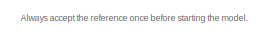
[diagram: root canvas - part 1/3, top left region]
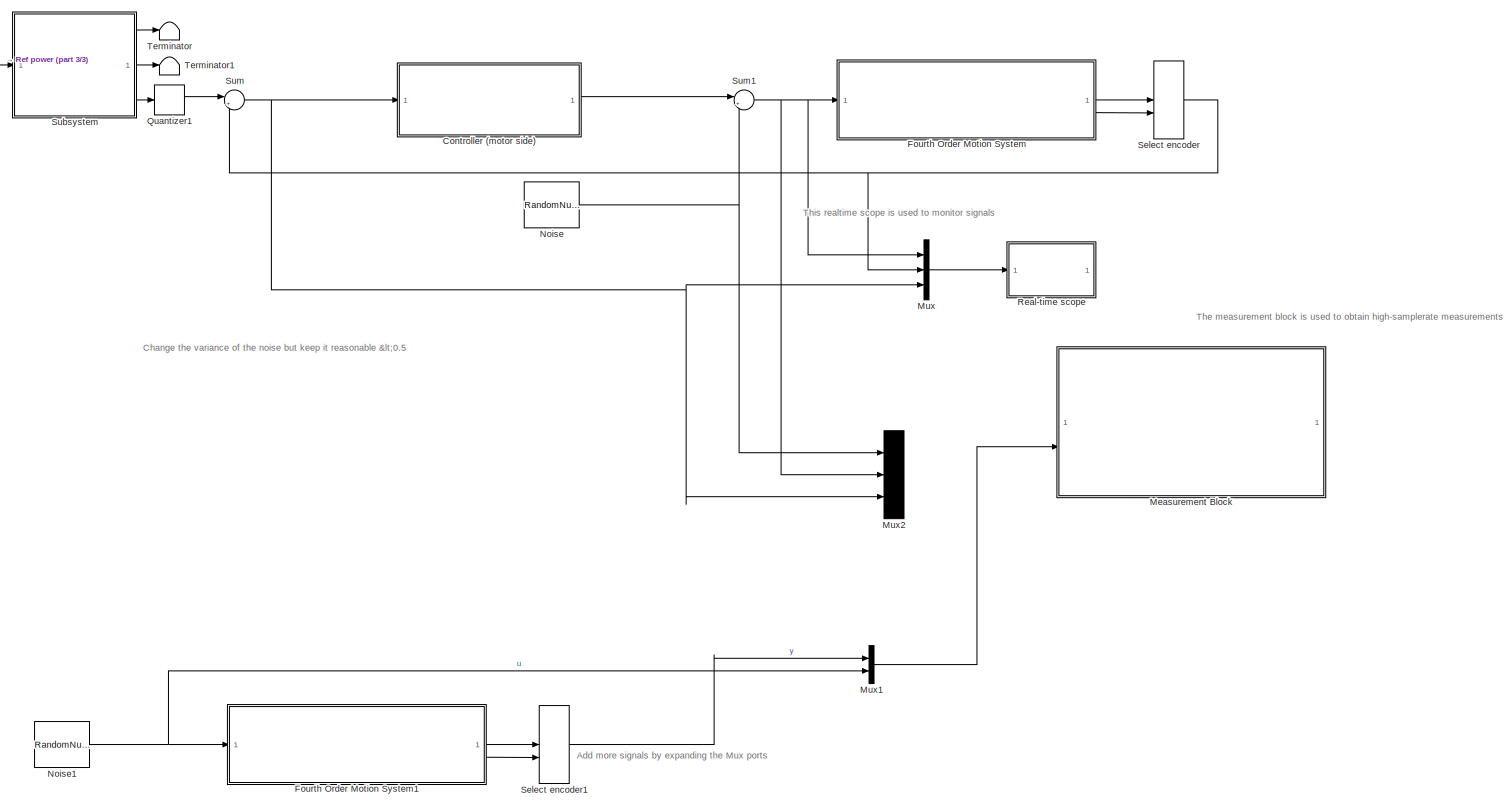
[diagram: root canvas - part 2/3, most of the canvas]
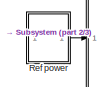
[diagram: root canvas - part 3/3, top left region]
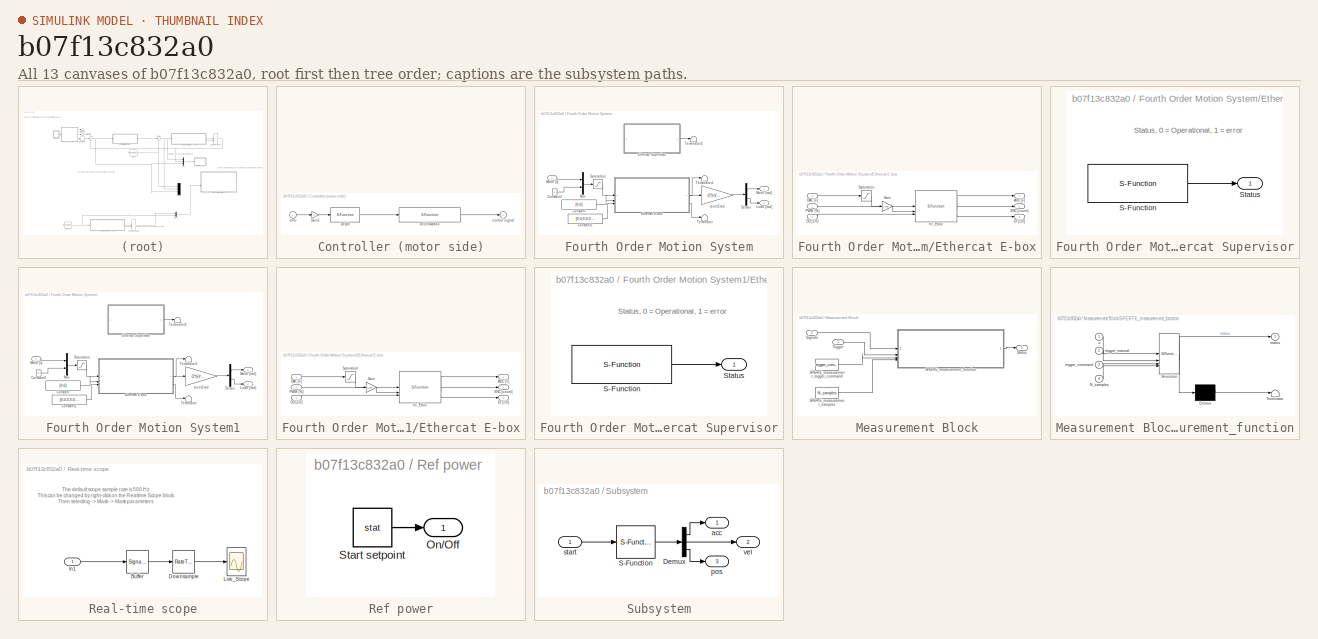
[diagram: thumbnail index - all 13 canvases of the model, root first then tree order]
MODEL slx_b07f13c832a0
KIND model
CONFIG AbsTol = auto
CONFIG EnableMultiTasking = on
CONFIG FixedStep = Ts
CONFIG InitFcn = Fs = 4000; Ts = 1/Fs; tsim = 29.9997;
CONFIG MaxStep = auto
CONFIG MinStep = auto
CONFIG RelTol = 1e-3
CONFIG SampleTimeConstraint = Unconstrained
CONFIG SolverName = FixedStepDiscrete
CONFIG StartTime = 0.0
CONFIG StopTime = inf
BLOCK [SubSystem] Controller (motor side)
  Commented = on
BLOCK [S-Function] Controller (motor side)/Dct2lowpass
  EnableBusSupport = off
  FunctionName = dlowpass2
  Parameters = f_den, b_den, 0.001
  SFcnIsStateOwnerBlock = off
  SFunctionDeploymentMode = off
BLOCK [S-Function] Controller (motor side)/Dctpd
  EnableBusSupport = off
  FunctionName = dpd
  Parameters = kp, kv, 0.001
  SFcnIsStateOwnerBlock = off
  SFunctionDeploymentMode = off
BLOCK [Gain] Controller (motor side)/Gain1
  Gain = -1
  OutDataTypeStr = Inherit: Same as input
  ParamDataTypeStr = Inherit: Same as input
  SaturateOnIntegerOverflow = on
BLOCK [Outport] Controller (motor side)/control signal
BLOCK [Inport] Controller (motor side)/error
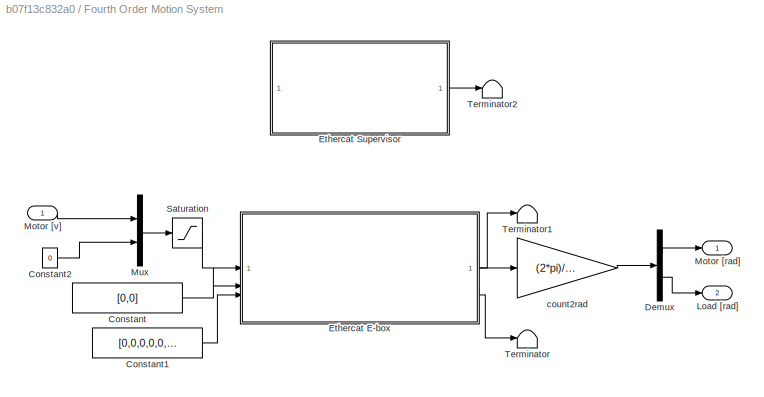
BLOCK [SubSystem] Fourth Order Motion System
  Commented = on
BLOCK [Constant] Fourth Order Motion System/Constant
  Value = [0,0]
BLOCK [Constant] Fourth Order Motion System/Constant1
  Value = [0,0,0,0,0,0,0,0]
BLOCK [Constant] Fourth Order Motion System/Constant2
  Value = 0
BLOCK [Demux] Fourth Order Motion System/Demux
  Outputs = 2
BLOCK [SubSystem] Fourth Order Motion System/Ethercat E-box
  Priority = -2
  UserDataPersistent = on
BLOCK [Outport] Fourth Order Motion System/Ethercat E-box/ADC [v]
BLOCK [Inport] Fourth Order Motion System/Ethercat E-box/DAC [v]
BLOCK [Outport] Fourth Order Motion System/Ethercat E-box/DI [1//0]
  Port = 3
BLOCK [Inport] Fourth Order Motion System/Ethercat E-box/DO [1//0]
  Port = 3
BLOCK [Outport] Fourth Order Motion System/Ethercat E-box/ENC [count]
  Port = 2
BLOCK [Gain] Fourth Order Motion System/Ethercat E-box/Gain
  Gain = 1/100
BLOCK [Inport] Fourth Order Motion System/Ethercat E-box/PWM [%]
  Port = 2
BLOCK [Saturate] Fourth Order Motion System/Ethercat E-box/Saturation
  LowerLimit = -10
  UpperLimit = 10
BLOCK [S-Function] Fourth Order Motion System/Ethercat E-box/ec_Ebox
  EnableBusSupport = off
  FunctionName = ec_Ebox
  Parameters = link_id
  SFcnIsStateOwnerBlock = off
  SFunctionDeploymentMode = off
BLOCK [SubSystem] Fourth Order Motion System/Ethercat Supervisor
  Description = Must be executed first, keep at -1 priority (highest)
  Priority = -3
  UserDataPersistent = on
BLOCK [S-Function] Fourth Order Motion System/Ethercat Supervisor/S-Function
  EnableBusSupport = off
  FunctionName = ec_Supervisor
  Parameters = portid,ectimeout
  SFcnIsStateOwnerBlock = off
  SFunctionDeploymentMode = off
BLOCK [Outport] Fourth Order Motion System/Ethercat Supervisor/Status
BLOCK [Outport] Fourth Order Motion System/Load [rad]
  Port = 2
BLOCK [Outport] Fourth Order Motion System/Motor [rad]
BLOCK [Inport] Fourth Order Motion System/Motor [v]
BLOCK [Mux] Fourth Order Motion System/Mux
  DisplayOption = bar
  Inputs = 2
BLOCK [Saturate] Fourth Order Motion System/Saturation
  LowerLimit = -2.5
  UpperLimit = 2.5
BLOCK [Terminator] Fourth Order Motion System/Terminator
BLOCK [Terminator] Fourth Order Motion System/Terminator1
BLOCK [Terminator] Fourth Order Motion System/Terminator2
BLOCK [Gain] Fourth Order Motion System/count2rad
  Gain = (2*pi)/(4*500)
BLOCK [SubSystem] Fourth Order Motion System1
BLOCK [Constant] Fourth Order Motion System1/Constant
  Value = [0,0]
BLOCK [Constant] Fourth Order Motion System1/Constant1
  Value = [0,0,0,0,0,0,0,0]
BLOCK [Constant] Fourth Order Motion System1/Constant2
  Value = 0
BLOCK [Demux] Fourth Order Motion System1/Demux
  Outputs = 2
BLOCK [SubSystem] Fourth Order Motion System1/Ethercat E-box
  Priority = -2
  UserDataPersistent = on
BLOCK [Outport] Fourth Order Motion System1/Ethercat E-box/ADC [v]
BLOCK [Inport] Fourth Order Motion System1/Ethercat E-box/DAC [v]
BLOCK [Outport] Fourth Order Motion System1/Ethercat E-box/DI [1//0]
  Port = 3
BLOCK [Inport] Fourth Order Motion System1/Ethercat E-box/DO [1//0]
  Port = 3
BLOCK [Outport] Fourth Order Motion System1/Ethercat E-box/ENC [count]
  Port = 2
BLOCK [Gain] Fourth Order Motion System1/Ethercat E-box/Gain
  Gain = 1/100
BLOCK [Inport] Fourth Order Motion System1/Ethercat E-box/PWM [%]
  Port = 2
BLOCK [Saturate] Fourth Order Motion System1/Ethercat E-box/Saturation
  LowerLimit = -10
  UpperLimit = 10
BLOCK [S-Function] Fourth Order Motion System1/Ethercat E-box/ec_Ebox
  EnableBusSupport = off
  FunctionName = ec_Ebox
  Parameters = link_id
  SFcnIsStateOwnerBlock = off
  SFunctionDeploymentMode = off
BLOCK [SubSystem] Fourth Order Motion System1/Ethercat Supervisor
  Description = Must be executed first, keep at -1 priority (highest)
  Priority = -3
  UserDataPersistent = on
BLOCK [S-Function] Fourth Order Motion System1/Ethercat Supervisor/S-Function
  EnableBusSupport = off
  FunctionName = ec_Supervisor
  Parameters = portid,ectimeout
  SFcnIsStateOwnerBlock = off
  SFunctionDeploymentMode = off
BLOCK [Outport] Fourth Order Motion System1/Ethercat Supervisor/Status
BLOCK [Outport] Fourth Order Motion System1/Load [rad]
  Port = 2
BLOCK [Outport] Fourth Order Motion System1/Motor [rad]
BLOCK [Inport] Fourth Order Motion System1/Motor [v]
BLOCK [Mux] Fourth Order Motion System1/Mux
  DisplayOption = bar
  Inputs = 2
BLOCK [Saturate] Fourth Order Motion System1/Saturation
  LowerLimit = -2.5
  UpperLimit = 2.5
BLOCK [Terminator] Fourth Order Motion System1/Terminator
BLOCK [Terminator] Fourth Order Motion System1/Terminator1
BLOCK [Terminator] Fourth Order Motion System1/Terminator2
BLOCK [Gain] Fourth Order Motion System1/count2rad
  Gain = (2*pi)/(4*500)
BLOCK [SubSystem] Measurement Block
  Description = Perform on-demand measurements to file using this block.\n\nIt can be used in 2 ways:\n1) Set the mask triggertype parameter to manual and use the trigger input signal to trigger a measurement.\nYou can do this by providing a 0 to 1 transition.\nKeep it low after you start/complete the measurement, or it will measure again.\nA file is created with measurement_0,1,2... etc\n\n2) Keep the model running, and...<+417ch>
  Priority = -1
  UserDataPersistent = on
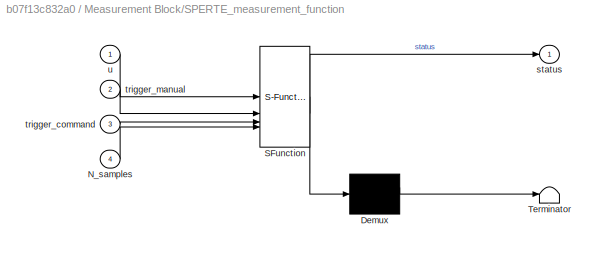
BLOCK [SubSystem] Measurement Block/SPERTE_measurement_function
  ErrorFcn = Stateflow.Translate.translate
  PermitHierarchicalResolution = ExplicitOnly
  SFBlockType = MATLAB Function
  TreatAsAtomicUnit = on
BLOCK [Demux] Measurement Block/SPERTE_measurement_function/ Demux 
  Outputs = 1
BLOCK [S-Function] Measurement Block/SPERTE_measurement_function/ SFunction 
  EnableBusSupport = on
  FunctionName = sf_sfun
  Parameters = triggertype
  PortCounts = [4 2]
  SFcnIsStateOwnerBlock = off
  SFunctionDeploymentMode = off
  Tag = Stateflow S-Function 1
BLOCK [Terminator] Measurement Block/SPERTE_measurement_function/ Terminator 
BLOCK [Inport] Measurement Block/SPERTE_measurement_function/N_samples
  Port = 4
BLOCK [Outport] Measurement Block/SPERTE_measurement_function/status
BLOCK [Inport] Measurement Block/SPERTE_measurement_function/trigger_command
  Port = 3
BLOCK [Inport] Measurement Block/SPERTE_measurement_function/trigger_manual
  Port = 2
BLOCK [Inport] Measurement Block/SPERTE_measurement_function/u
BLOCK [Constant] Measurement Block/SPERTE_measurement_samples
  OutDataTypeStr = uint32
  Value = N_samples
BLOCK [Constant] Measurement Block/SPERTE_measurement_trigger_command
  OutDataTypeStr = uint8
  Value = trigger_command
BLOCK [Inport] Measurement Block/Signals
  Port = 2
BLOCK [Outport] Measurement Block/Status
BLOCK [Inport] Measurement Block/Trigger
BLOCK [Mux] Mux
  Commented = on
  DisplayOption = bar
  Inputs = 3
BLOCK [Mux] Mux1
  DisplayOption = bar
  Inputs = 2
BLOCK [Mux] Mux2
  DisplayOption = bar
  Inputs = 3
BLOCK [RandomNumber] Noise
  Commented = on
  SampleTime = Ts
BLOCK [RandomNumber] Noise1
  SampleTime = Ts
BLOCK [Quantizer] Quantizer1
  Commented = on
  QuantizationInterval = (2*pi)/(500*4)
BLOCK [SubSystem] Real-time scope
  Commented = on
  CopyFcn = set_param(gcb,'LinkStatus','None')
  OpenFcn = open_system(strcat(get_param(gcb,'Parent'),'/',get_param(gcb,'Name'),'/Live_Scope'),'force');
  Priority = 0
  UserDataPersistent = on
BLOCK [SignalConversion] Real-time scope/Buffer
  OverrideOpt = off
BLOCK [RateTransition] Real-time scope/Downsample
  OutPortSampleTime = Sample_Time
BLOCK [Inport] Real-time scope/In1
BLOCK [Scope] Real-time scope/Live_Scope
  Floating = off
  NumInputPorts = 1
  ScopeSpecificationString = Simulink.scopes.TimeScopeBlockCfg('CurrentConfiguration', extmgr.ConfigurationSet(extmgr.Configuration('Core','General UI',true),extmgr.Configuration('Core','Source UI',true),extmgr.Configuration('Sources','WiredSimulink',true),extmgr.Configuration('Visuals','Time Domain',true,'SerializedDisplays',{struct('MinYLimReal','-6.35817','MaxYLimReal','4.22085','YLabelReal','','MinYLimMag','0.00000','MaxY...<+1505ch>
BLOCK [SubSystem] Ref power
  Commented = on
BLOCK [Outport] Ref power/On//Off
BLOCK [Constant] Ref power/Start setpoint
  Value = stat
BLOCK [ManualSwitch] Select encoder
  Commented = on
  CurrentSetting = 0
BLOCK [ManualSwitch] Select encoder1
  CurrentSetting = 0
BLOCK [SubSystem] Subsystem
  Commented = on
  OpenFcn = global ref_part; cb_axes 1
BLOCK [Demux] Subsystem/Demux
  DisplayOption = none
  Outputs = 3
BLOCK [S-Function] Subsystem/S-Function
  EnableBusSupport = off
  FunctionName = ref3b
  OpenFcn = global ref_part; r3g_main
  Parameters = ref_part
  SFcnIsStateOwnerBlock = off
  SFunctionDeploymentMode = off
BLOCK [Outport] Subsystem/acc
BLOCK [Outport] Subsystem/pos
  Port = 3
BLOCK [Inport] Subsystem/start
BLOCK [Outport] Subsystem/vel
  Port = 2
BLOCK [Sum] Sum
  Commented = on
  Inputs = |+-
BLOCK [Sum] Sum1
  Commented = on
  Inputs = |++
BLOCK [Terminator] Terminator
  Commented = on
BLOCK [Terminator] Terminator1
  Commented = on
ANNOTATION (root): Always accept the reference once before starting the model.
ANNOTATION (root): Add more signals by expanding the Mux ports
ANNOTATION (root): Change the variance of the noise but keep it reasonable <0.5
ANNOTATION (root): The measurement block is used to obtain high-samplerate measurements
ANNOTATION (root): This realtime scope is used to monitor signals
ANNOTATION Fourth Order Motion System/Ethercat Supervisor: Status, 0 = Operational, 1 = error
ANNOTATION Fourth Order Motion System1/Ethercat Supervisor: Status, 0 = Operational, 1 = error
ANNOTATION Real-time scope: The default scope sample rate is 500 Hz. This can be changed by right-click on the Realtime Scope block. Then selecting -> Mask -> Mask parameters.
LINE Controller (motor side)/Dct2lowpass:1 -> Controller (motor side)/control signal:1
LINE Controller (motor side)/Dctpd:1 -> Controller (motor side)/Dct2lowpass:1
LINE Controller (motor side)/Gain1:1 -> Controller (motor side)/Dctpd:1
LINE Controller (motor side)/error:1 -> Controller (motor side)/Gain1:1
LINE Controller (motor side):1 -> Sum1:1
LINE Fourth Order Motion System/Constant1:1 -> Fourth Order Motion System/Ethercat E-box:3
LINE Fourth Order Motion System/Constant2:1 -> Fourth Order Motion System/Mux:2
LINE Fourth Order Motion System/Constant:1 -> Fourth Order Motion System/Ethercat E-box:2
LINE Fourth Order Motion System/Demux:1 -> Fourth Order Motion System/Motor [rad]:1
LINE Fourth Order Motion System/Demux:2 -> Fourth Order Motion System/Load [rad]:1
LINE Fourth Order Motion System/Ethercat E-box/DAC [v]:1 -> Fourth Order Motion System/Ethercat E-box/Saturation:1
LINE Fourth Order Motion System/Ethercat E-box/DO [1//0]:1 -> Fourth Order Motion System/Ethercat E-box/ec_Ebox:3
LINE Fourth Order Motion System/Ethercat E-box/Gain:1 -> Fourth Order Motion System/Ethercat E-box/ec_Ebox:2
LINE Fourth Order Motion System/Ethercat E-box/PWM [%]:1 -> Fourth Order Motion System/Ethercat E-box/Gain:1
LINE Fourth Order Motion System/Ethercat E-box/Saturation:1 -> Fourth Order Motion System/Ethercat E-box/ec_Ebox:1
LINE Fourth Order Motion System/Ethercat E-box/ec_Ebox:1 -> Fourth Order Motion System/Ethercat E-box/ADC [v]:1
LINE Fourth Order Motion System/Ethercat E-box/ec_Ebox:2 -> Fourth Order Motion System/Ethercat E-box/ENC [count]:1
LINE Fourth Order Motion System/Ethercat E-box/ec_Ebox:3 -> Fourth Order Motion System/Ethercat E-box/DI [1//0]:1
LINE Fourth Order Motion System/Ethercat E-box:1 -> Fourth Order Motion System/Terminator1:1
LINE Fourth Order Motion System/Ethercat E-box:2 -> Fourth Order Motion System/count2rad:1
LINE Fourth Order Motion System/Ethercat E-box:3 -> Fourth Order Motion System/Terminator:1
LINE Fourth Order Motion System/Ethercat Supervisor/S-Function:1 -> Fourth Order Motion System/Ethercat Supervisor/Status:1
LINE Fourth Order Motion System/Ethercat Supervisor:1 -> Fourth Order Motion System/Terminator2:1
LINE Fourth Order Motion System/Motor [v]:1 -> Fourth Order Motion System/Mux:1
LINE Fourth Order Motion System/Mux:1 -> Fourth Order Motion System/Saturation:1
LINE Fourth Order Motion System/Saturation:1 -> Fourth Order Motion System/Ethercat E-box:1
LINE Fourth Order Motion System/count2rad:1 -> Fourth Order Motion System/Demux:1
LINE Fourth Order Motion System1/Constant1:1 -> Fourth Order Motion System1/Ethercat E-box:3
LINE Fourth Order Motion System1/Constant2:1 -> Fourth Order Motion System1/Mux:2
LINE Fourth Order Motion System1/Constant:1 -> Fourth Order Motion System1/Ethercat E-box:2
LINE Fourth Order Motion System1/Demux:1 -> Fourth Order Motion System1/Motor [rad]:1
LINE Fourth Order Motion System1/Demux:2 -> Fourth Order Motion System1/Load [rad]:1
LINE Fourth Order Motion System1/Ethercat E-box/DAC [v]:1 -> Fourth Order Motion System1/Ethercat E-box/Saturation:1
LINE Fourth Order Motion System1/Ethercat E-box/DO [1//0]:1 -> Fourth Order Motion System1/Ethercat E-box/ec_Ebox:3
LINE Fourth Order Motion System1/Ethercat E-box/Gain:1 -> Fourth Order Motion System1/Ethercat E-box/ec_Ebox:2
LINE Fourth Order Motion System1/Ethercat E-box/PWM [%]:1 -> Fourth Order Motion System1/Ethercat E-box/Gain:1
LINE Fourth Order Motion System1/Ethercat E-box/Saturation:1 -> Fourth Order Motion System1/Ethercat E-box/ec_Ebox:1
LINE Fourth Order Motion System1/Ethercat E-box/ec_Ebox:1 -> Fourth Order Motion System1/Ethercat E-box/ADC [v]:1
LINE Fourth Order Motion System1/Ethercat E-box/ec_Ebox:2 -> Fourth Order Motion System1/Ethercat E-box/ENC [count]:1
LINE Fourth Order Motion System1/Ethercat E-box/ec_Ebox:3 -> Fourth Order Motion System1/Ethercat E-box/DI [1//0]:1
LINE Fourth Order Motion System1/Ethercat E-box:1 -> Fourth Order Motion System1/Terminator1:1
LINE Fourth Order Motion System1/Ethercat E-box:2 -> Fourth Order Motion System1/count2rad:1
LINE Fourth Order Motion System1/Ethercat E-box:3 -> Fourth Order Motion System1/Terminator:1
LINE Fourth Order Motion System1/Ethercat Supervisor/S-Function:1 -> Fourth Order Motion System1/Ethercat Supervisor/Status:1
LINE Fourth Order Motion System1/Ethercat Supervisor:1 -> Fourth Order Motion System1/Terminator2:1
LINE Fourth Order Motion System1/Motor [v]:1 -> Fourth Order Motion System1/Mux:1
LINE Fourth Order Motion System1/Mux:1 -> Fourth Order Motion System1/Saturation:1
LINE Fourth Order Motion System1/Saturation:1 -> Fourth Order Motion System1/Ethercat E-box:1
LINE Fourth Order Motion System1/count2rad:1 -> Fourth Order Motion System1/Demux:1
LINE Fourth Order Motion System1:1 -> Select encoder1:1
LINE Fourth Order Motion System1:2 -> Select encoder1:2
LINE Fourth Order Motion System:1 -> Select encoder:1
LINE Fourth Order Motion System:2 -> Select encoder:2
LINE Measurement Block/SPERTE_measurement_function:1 -> Measurement Block/Status:1
LINE Measurement Block/SPERTE_measurement_samples:1 -> Measurement Block/SPERTE_measurement_function:4
LINE Measurement Block/SPERTE_measurement_trigger_command:1 -> Measurement Block/SPERTE_measurement_function:3
LINE Measurement Block/Signals:1 -> Measurement Block/SPERTE_measurement_function:1
LINE Measurement Block/Trigger:1 -> Measurement Block/SPERTE_measurement_function:2
LINE Mux1:1 -> Measurement Block:2
LINE Mux:1 -> Real-time scope:1
NET Noise1:1 -> Fourth Order Motion System1:1, Mux1:2
NET Noise:1 -> Mux2:1, Sum1:2
LINE Quantizer1:1 -> Sum:1
LINE Real-time scope/Buffer:1 -> Real-time scope/Downsample:1
LINE Real-time scope/Downsample:1 -> Real-time scope/Live_Scope:1
LINE Real-time scope/In1:1 -> Real-time scope/Buffer:1
LINE Ref power/Start setpoint:1 -> Ref power/On//Off:1
LINE Ref power:1 -> Subsystem:1
LINE Select encoder1:1 -> Mux1:1
NET Select encoder:1 -> Mux:2, Sum:2
LINE Subsystem/Demux:1 -> Subsystem/acc:1
LINE Subsystem/Demux:2 -> Subsystem/vel:1
LINE Subsystem/Demux:3 -> Subsystem/pos:1
LINE Subsystem/S-Function:1 -> Subsystem/Demux:1
LINE Subsystem/start:1 -> Subsystem/S-Function:1
LINE Subsystem:1 -> Terminator:1
LINE Subsystem:2 -> Terminator1:1
LINE Subsystem:3 -> Quantizer1:1
NET Sum1:1 -> Fourth Order Motion System:1, Mux2:2, Mux:1
NET Sum:1 -> Controller (motor side):1, Mux2:3, Mux:3
note: NET lines group one-source signal fan-out (src -> all destinations, sorted); 1:1 wires keep LINE
CHART Measurement Block/SPERTE_measurement_function states=1 transitions=1
  STATE_LABEL 'eML_blk_kernel()'
  STATE_LABEL 'SCRIPT:\nfunction status = perform_measurement(u, trigger_manual, trigger_command, triggertype, N_samples)\n\n%% Persistent variables\npersistent fileID NF busy NS\n\n% Init parameters\nif isempty(NF)\n    NF = int16(0);\nend\nif isempty(NS)\n    NS = uint32(0);\nend\nif isempty(fileID)\n    fileID = 0;\nend\nif isempty(busy)\n    busy = uint8(0);\nend\n\n%% Check the triggers\nif ( (triggertype == 0 && trigger_manual...<+770ch>'
CHART  states=0 transitions=0
